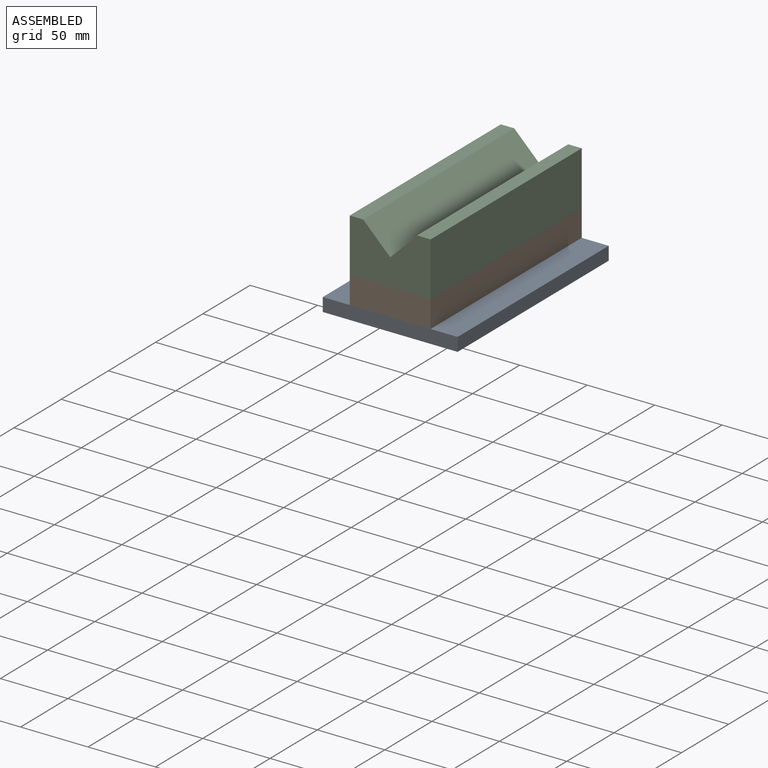
[diagram: assembled view]
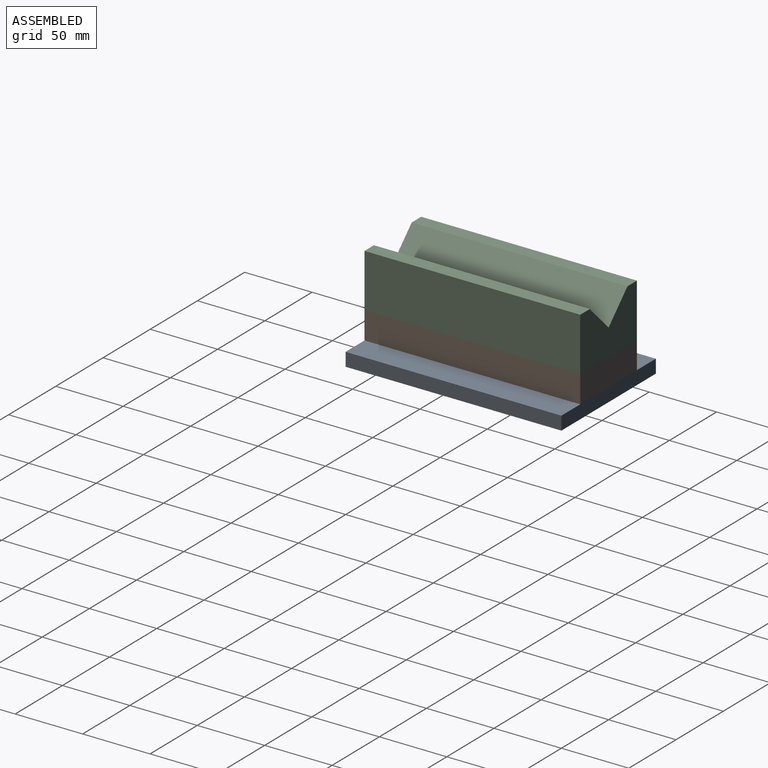
[diagram: assembled view, second angle]
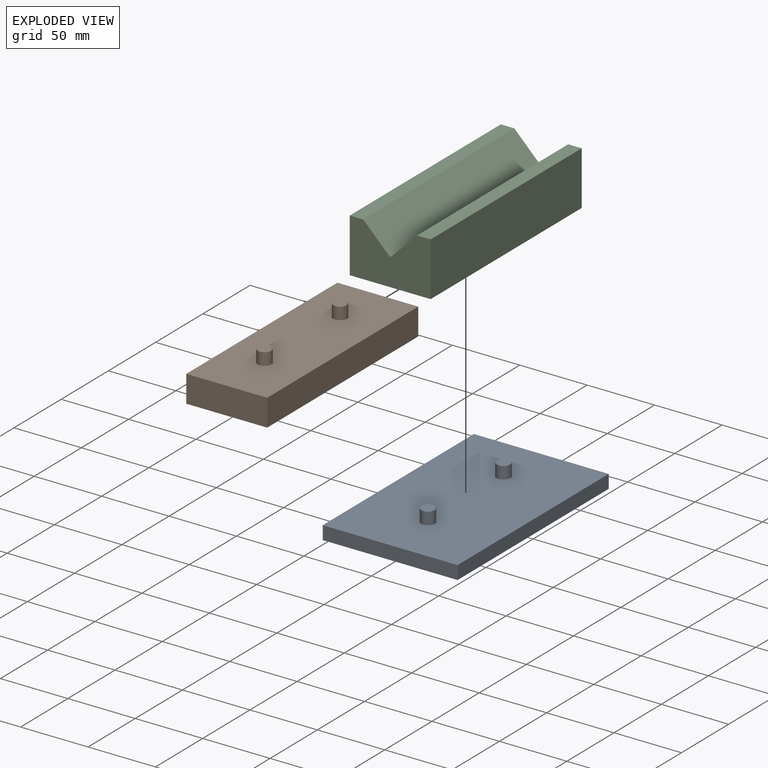
[diagram: exploded view]
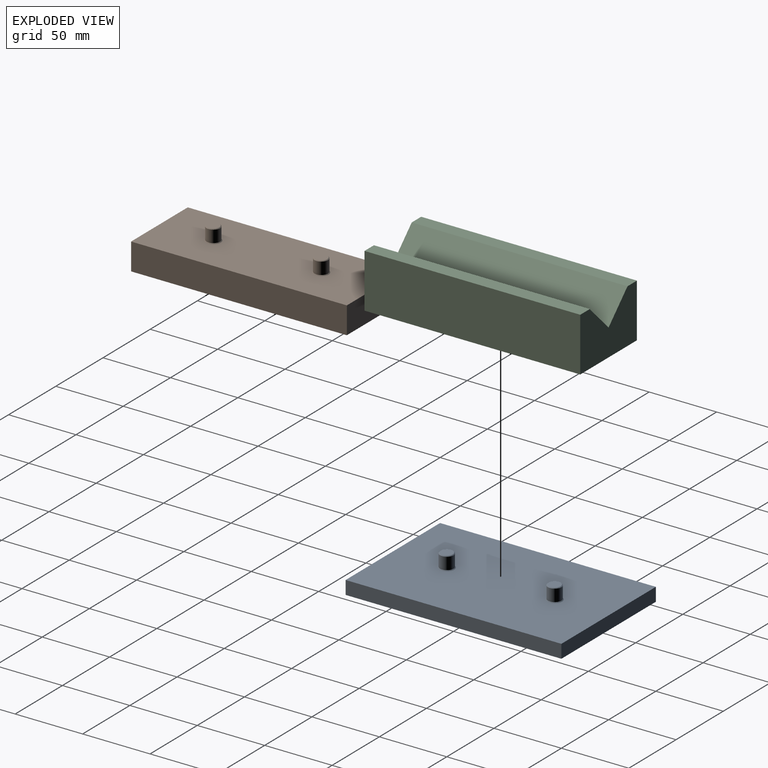
[diagram: exploded view, second angle]
ASSEMBLY  parts=3 mates=2
PART A: 14 faces, bbox 100x160x20 mm
  f0: plane 160x100mm, normal (0,0,1), area 15809.9mm2, adj f1,f3,f4,f5,f8,f12
  f1: plane 160x10mm, normal (-1,0,0), area 1600mm2, adj f0,f2,f4,f5
  f2: plane 160x100mm, normal (0,0,-1), area 16000mm2, adj f1,f3,f4,f5
  f3: plane 160x10mm, normal (1,0,0), area 1600mm2, adj f0,f2,f4,f5
  f4: plane 100x10mm, normal (0,-1,0), area 1000mm2, adj f0,f1,f2,f3
  f5: plane 100x10mm, normal (0,1,0), area 1000mm2, adj f0,f1,f2,f3
  f6: cylinder r=5mm len=10mm, axis (0,0,-1), area 282.7mm2, adj f8,f9
  f7: plane 9x9mm, normal (0,0,1), area 63.6mm2, adj f9
  f8: cone r=5mm half-angle=45deg, axis (0,0,-1), area 23.3mm2, adj f0,f6
  f9: cone r=4.5mm half-angle=45deg, axis (0,0,-1), area 21.1mm2, adj f6,f7
  f10: cylinder r=5mm len=10mm, axis (0,0,-1), area 282.7mm2, adj f12,f13
  f11: plane 9x9mm, normal (0,0,1), area 63.6mm2, adj f13
  f12: cone r=5mm half-angle=45deg, axis (0,0,-1), area 23.3mm2, adj f0,f10
  f13: cone r=5mm half-angle=45deg, axis (0,0,-1), area 21.1mm2, adj f10,f11
PART B: 22 faces, bbox 60x160x30 mm
  f0: plane 160x20mm, normal (-1,0,0), area 3200mm2, adj f1,f3,f4,f5
  f1: plane 160x60mm, normal (0,0,-1), area 9409.9mm2, adj f0,f2,f4,f5,f9,f13
  f2: plane 160x20mm, normal (1,0,0), area 3200mm2, adj f1,f3,f4,f5
  f3: plane 160x60mm, normal (0,0,1), area 9409.9mm2, adj f0,f2,f4,f5,f16,f20
  f4: plane 60x20mm, normal (0,-1,0), area 1200mm2, adj f0,f1,f2,f3
  f5: plane 60x20mm, normal (0,1,0), area 1200mm2, adj f0,f1,f2,f3
  f6: cylinder r=5mm len=10mm, axis (0,0,-1), area 282.7mm2, adj f8,f9
  f7: plane 9x9mm, normal (0,0,-1), area 63.6mm2, adj f8
  f8: cone r=4.5mm half-angle=45deg, axis (0,0,-1), area 21.1mm2, adj f6,f7
  f9: cone r=5mm half-angle=45deg, axis (0,0,-1), area 23.3mm2, adj f1,f6
  f10: cylinder r=5mm len=10mm, axis (0,0,-1), area 282.7mm2, adj f12,f13
  f11: plane 9x9mm, normal (0,0,-1), area 63.6mm2, adj f12
  f12: cone r=5mm half-angle=45deg, axis (0,0,-1), area 21.1mm2, adj f10,f11
  f13: cone r=5.5mm half-angle=45deg, axis (0,0,-1), area 23.3mm2, adj f1,f10
  f14: cylinder r=5mm len=10mm, axis (0,0,-1), area 282.7mm2, adj f16,f17
  f15: plane 9x9mm, normal (0,0,1), area 63.6mm2, adj f17
  f16: cone r=5mm half-angle=45deg, axis (0,0,-1), area 23.3mm2, adj f3,f14
  f17: cone r=4.5mm half-angle=45deg, axis (0,0,-1), area 21.1mm2, adj f14,f15
  f18: cylinder r=5mm len=10mm, axis (0,0,-1), area 282.7mm2, adj f20,f21
  f19: plane 9x9mm, normal (0,0,1), area 63.6mm2, adj f21
  f20: cone r=5mm half-angle=45deg, axis (0,0,-1), area 23.3mm2, adj f3,f18
  f21: cone r=5mm half-angle=45deg, axis (0,0,-1), area 21.1mm2, adj f18,f19
PART C: 17 faces, bbox 60x160x40 mm
  f0: plane 160x20mm, normal (0.71,0,0.71), area 4525.5mm2, adj f1,f6,f7,f8
  f1: plane 160x10mm, normal (0,0,1), area 1600mm2, adj f0,f2,f7,f8
  f2: plane 160x40mm, normal (-1,0,0), area 6400mm2, adj f1,f3,f7,f8
  f3: plane 160x60mm, normal (0,0,-1), area 9409.9mm2, adj f2,f4,f7,f8,f12,f16
  f4: plane 160x40mm, normal (1,0,0), area 6400mm2, adj f3,f5,f7,f8
  f5: plane 160x10mm, normal (0,0,1), area 1600mm2, adj f4,f6,f7,f8
  f6: plane 160x20mm, normal (-0.71,0,0.71), area 4525.5mm2, adj f0,f5,f7,f8
  f7: plane 60x40mm, normal (0,-1,0), area 2000mm2, adj f0,f1,f2,f3,f4,f5,f6
  f8: plane 60x40mm, normal (0,1,0), area 2000mm2, adj f0,f1,f2,f3,f4,f5,f6
  f9: cylinder r=5mm len=10mm, axis (0,0,-1), area 282.7mm2, adj f11,f12
  f10: plane 9x9mm, normal (0,0,-1), area 63.6mm2, adj f11
  f11: cone r=4.5mm half-angle=45deg, axis (0,0,-1), area 21.1mm2, adj f9,f10
  f12: cone r=5mm half-angle=45deg, axis (0,0,-1), area 23.3mm2, adj f3,f9
  f13: cylinder r=5mm len=10mm, axis (0,0,-1), area 282.7mm2, adj f15,f16
  f14: plane 9x9mm, normal (0,0,-1), area 63.6mm2, adj f15
  f15: cone r=5mm half-angle=45deg, axis (0,0,-1), area 21.1mm2, adj f13,f14
  f16: cone r=5.5mm half-angle=45deg, axis (0,0,-1), area 23.3mm2, adj f3,f13
PLACE A at identity fixed
PLACE B at identity
PLACE C t=(0,0,20)mm
MATE slider B.f6 <-> A.f10  axis (0,0,-1) through (0,40,10)mm
MATE slider C.f9 <-> B.f6  axis (0,0,-1) through (0,40,30)mm
